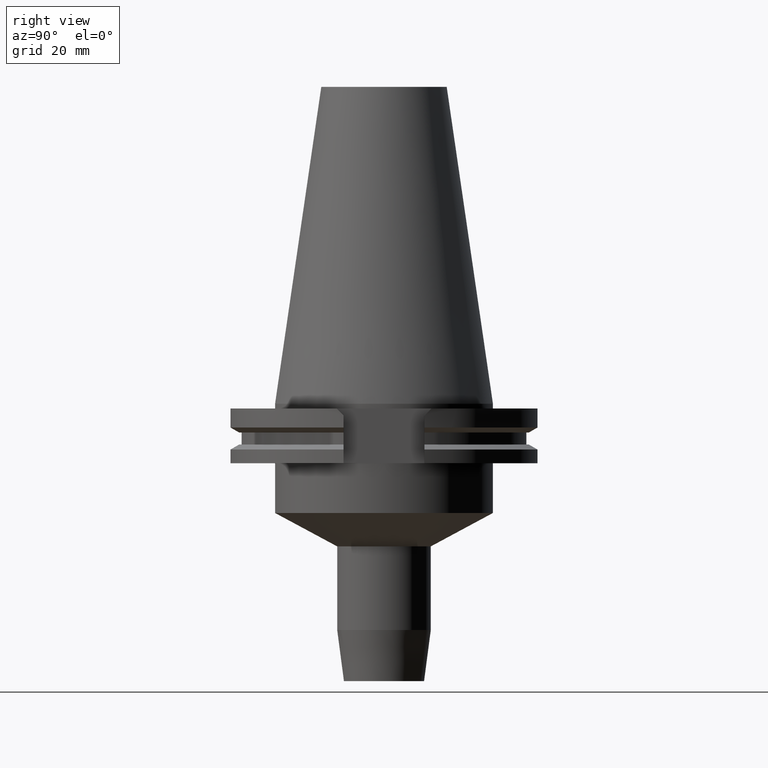
[diagram: clean part render]
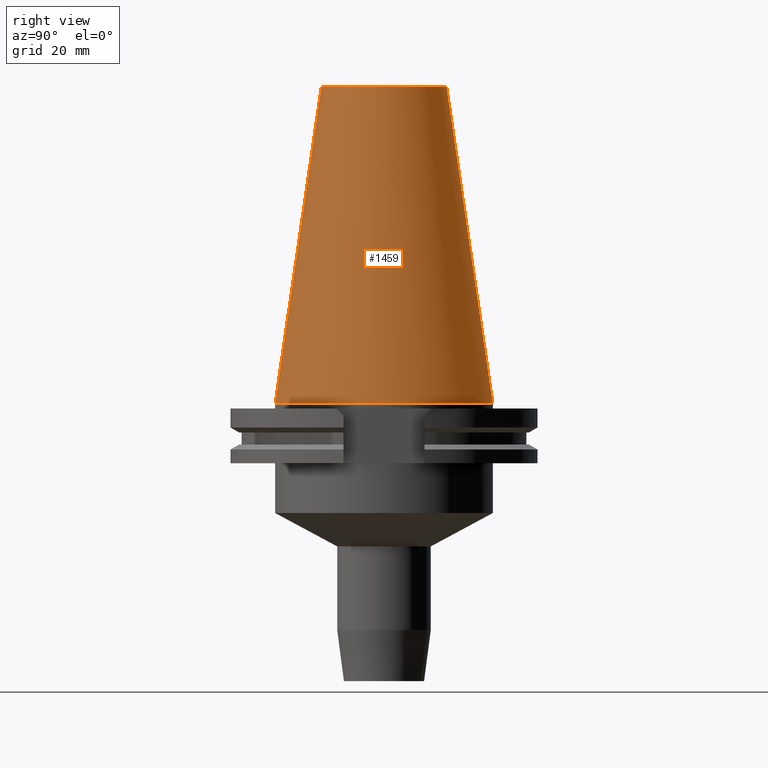
[diagram: same view with one face highlighted and labeled with its STEP entity id]
A machine part, right view. The second image highlights one B-rep face of the part: STEP entity #1459.
In plain terms, the highlighted conical surface has half-angle 8.297 deg.
Its self-contained STEP definition (entity closure, byte-faithful):
#26=CARTESIAN_POINT('',(0.E0,1.846767373114E-14,1.016E2));
#27=DIRECTION('',(0.E0,0.E0,-1.E0));
#28=DIRECTION('',(0.E0,1.E0,0.E0));
#29=AXIS2_PLACEMENT_3D('',#26,#27,#28);
#50=DIRECTION('',(0.E0,-1.443069799457E-1,-9.895329683942E-1));
#51=VECTOR('',#50,1.026746993229E2);
#52=CARTESIAN_POINT('',(0.E0,-2.010832422387E1,1.016E2));
#53=LINE('',#52,#51);
#65=DIRECTION('',(0.E0,1.443069799457E-1,-9.895329683942E-1));
#66=VECTOR('',#65,1.026746993229E2);
#67=CARTESIAN_POINT('',(0.E0,2.010832422387E1,1.016E2));
#68=LINE('',#67,#66);
#72=CARTESIAN_POINT('',(0.E0,1.846767373114E-14,7.389644451905E-13));
#73=DIRECTION('',(0.E0,0.E0,-1.E0));
#74=DIRECTION('',(0.E0,1.E0,0.E0));
#75=AXIS2_PLACEMENT_3D('',#72,#73,#74);
#1212=CARTESIAN_POINT('',(0.E0,-2.010832422388E1,1.016E2));
#1213=CARTESIAN_POINT('',(0.E0,2.010832422388E1,1.016E2));
#1214=VERTEX_POINT('',#1212);
#1215=VERTEX_POINT('',#1213);
#1406=CARTESIAN_POINT('',(0.E0,3.4925E1,4.121147867409E-13));
#1407=VERTEX_POINT('',#1406);
#1408=CARTESIAN_POINT('',(0.E0,-3.4925E1,4.121147867409E-13));
#1409=VERTEX_POINT('',#1408);
#1447=CARTESIAN_POINT('',(0.E0,1.846767373114E-14,5.08E1));
#1448=DIRECTION('',(0.E0,0.E0,-1.E0));
#1449=DIRECTION('',(0.E0,-1.E0,0.E0));
#1450=AXIS2_PLACEMENT_3D('',#1447,#1448,#1449);
#1451=CONICAL_SURFACE('',#1450,2.751666211194E1,8.29715E0);
#1452=ORIENTED_EDGE('',*,*,#1437,.T.);
#1454=ORIENTED_EDGE('',*,*,#1453,.T.);
#1455=ORIENTED_EDGE('',*,*,#1440,.F.);
#1456=ORIENTED_EDGE('',*,*,#1421,.F.);
#1457=EDGE_LOOP('',(#1452,#1454,#1455,#1456));
#1458=FACE_OUTER_BOUND('',#1457,.F.);
#30=CIRCLE('',#29,2.010832422388E1);
#76=CIRCLE('',#75,3.4925E1);
#1421=EDGE_CURVE('',#1215,#1214,#30,.T.);
#1437=EDGE_CURVE('',#1215,#1407,#68,.T.);
#1440=EDGE_CURVE('',#1214,#1409,#53,.T.);
#1453=EDGE_CURVE('',#1407,#1409,#76,.T.);
#1459=ADVANCED_FACE('',(#1458),#1451,.T.);